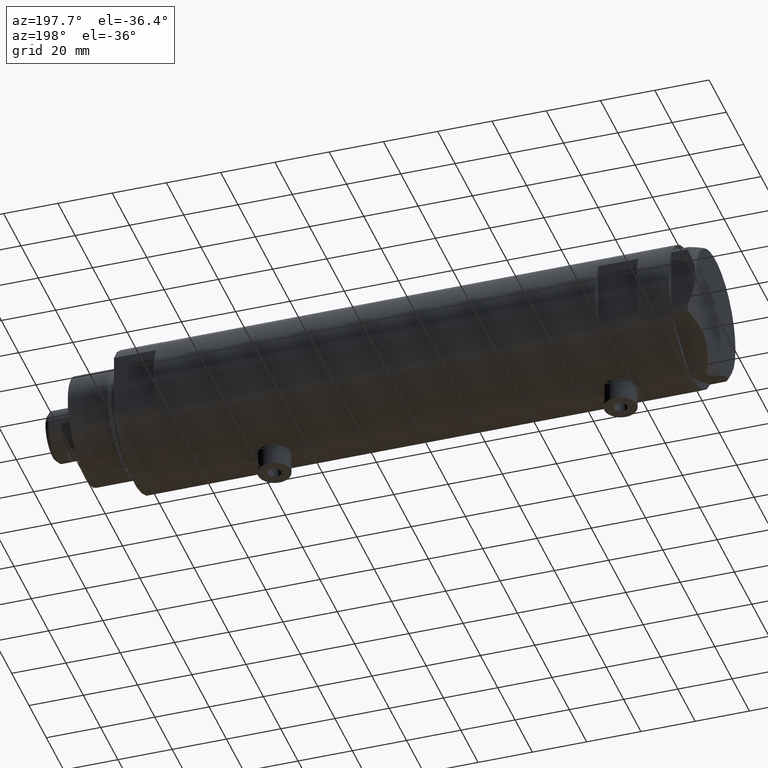
[diagram: clean part render]
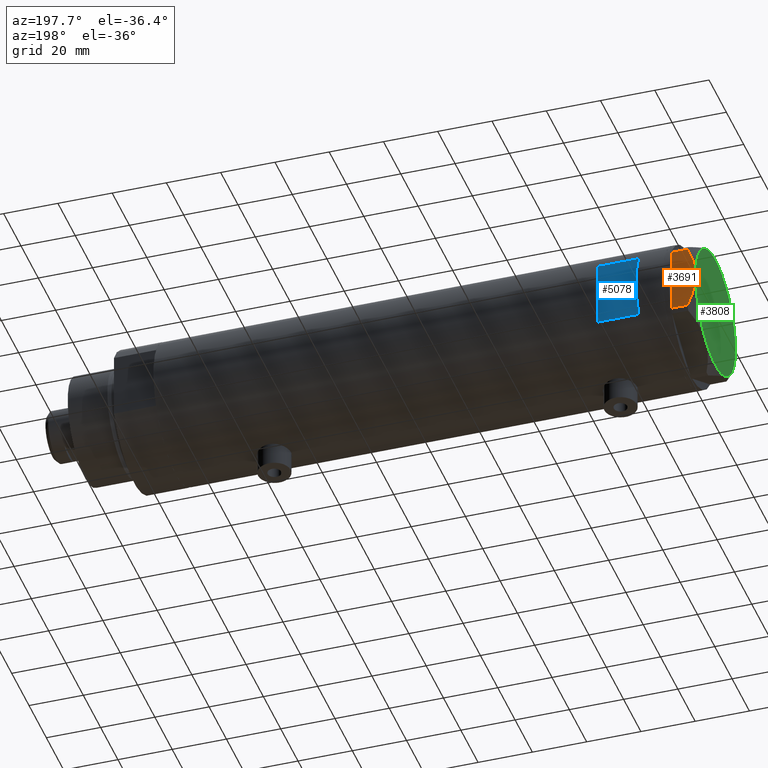
[diagram: same view with three faces highlighted in distinct colors, each labeled with its STEP entity id]
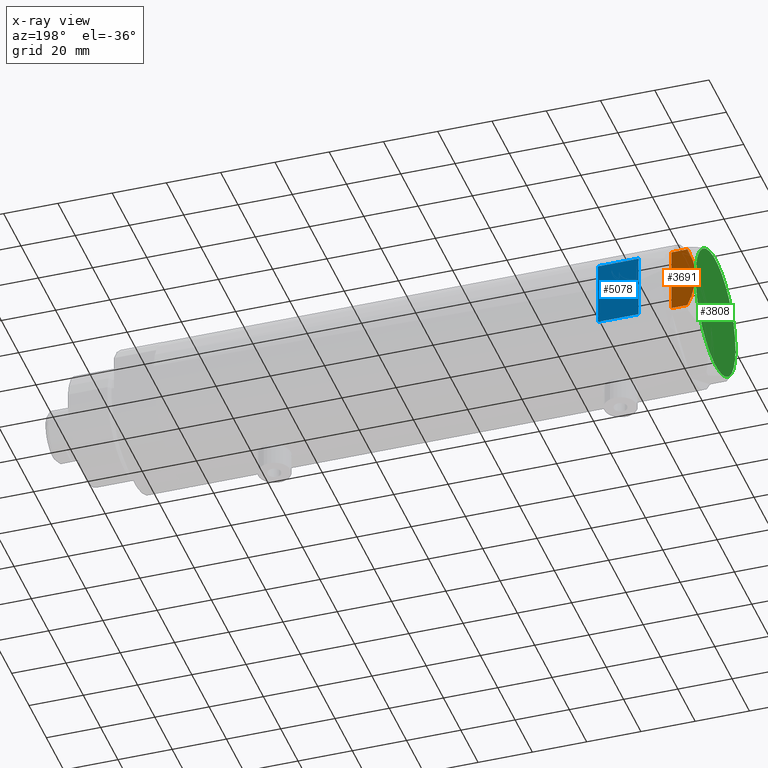
[diagram: x-ray of the same camera — body ghosted, the three highlighted faces saturated]
A machine part, auxiliary view with three faces highlighted in distinct colors.
The next image is the same camera in x-ray (body ghosted, the three faces saturated) — at least one of them is partly hidden behind the body in this view.
Their STEP definitions:

[orange] entity #3691 — the highlighted planar face has unit normal (0, -1, 0).
#37 = CARTESIAN_POINT ( 'NONE',  ( 23.00000000000002132, -6.734330413511252722, 8.039389741252669808 ) ) ;
#144 = CARTESIAN_POINT ( 'NONE',  ( 23.00000000000008527, -13.27905619136115867, 0.000000000000000000 ) ) ;
#207 = DIRECTION ( 'NONE',  ( -1.000000000000000000, -1.032024811306395780E-14, 0.000000000000000000 ) ) ;
#222 = DIRECTION ( 'NONE',  ( -1.032024811306395780E-14, 1.000000000000000000, 0.000000000000000000 ) ) ;
#274 = VERTEX_POINT ( 'NONE', #692 ) ;
#309 = ORIENTED_EDGE ( 'NONE', *, *, #4830, .T. ) ;
#370 = CARTESIAN_POINT ( 'NONE',  ( 23.00000000000004263, -8.748091966971204059, 7.396818978284578350 ) ) ;
#380 = EDGE_CURVE ( 'NONE', #3529, #1786, #3949, .T. ) ;
#481 = CARTESIAN_POINT ( 'NONE',  ( 23.00000000000008527, -13.27905619136115867, 0.000000000000000000 ) ) ;
#493 = LINE ( 'NONE', #831, #4534 ) ;
#509 = DIRECTION ( 'NONE',  ( -1.032024811306395780E-14, 1.000000000000000000, 0.000000000000000000 ) ) ;
#525 = CARTESIAN_POINT ( 'NONE',  ( 22.99999999999982236, 12.15905619136164262, 5.983800287807618190 ) ) ;
#602 = CARTESIAN_POINT ( 'NONE',  ( 22.99999999999994671, 0.5295934231899334099, 9.000000000000095923 ) ) ;
#609 = CARTESIAN_POINT ( 'NONE',  ( 22.99999999999982236, 12.15905619136163729, 9.000000000000000000 ) ) ;
#692 = CARTESIAN_POINT ( 'NONE',  ( 22.99999999999982236, 12.15905619136164262, 5.983800287807618190 ) ) ;
#762 = CARTESIAN_POINT ( 'NONE',  ( 23.00000000000003197, -8.246028007352183664, 7.571131808646910599 ) ) ;
#772 = VERTEX_POINT ( 'NONE', #3301 ) ;
#831 = CARTESIAN_POINT ( 'NONE',  ( 23.00000000000008527, -13.27905619136115867, 0.000000000000000000 ) ) ;
#875 = CARTESIAN_POINT ( 'NONE',  ( 23.00000000000008527, -13.27905619136115867, 9.000000000000000000 ) ) ;
#903 = DIRECTION ( 'NONE',  ( 1.032024811306395780E-14, -1.000000000000000000, 0.000000000000000000 ) ) ;
#970 = DIRECTION ( 'NONE',  ( 0.000000000000000000, 0.000000000000000000, 1.000000000000000000 ) ) ;
#1153 = ORIENTED_EDGE ( 'NONE', *, *, #1430, .F. ) ;
#1182 = CARTESIAN_POINT ( 'NONE',  ( 23.00000000000002842, -7.239756182922028493, 7.892186063422852449 ) ) ;
#1226 = CARTESIAN_POINT ( 'NONE',  ( 22.99999999999995026, 2.373657066004705010E-13, 9.000000000000000000 ) ) ;
#1338 = VECTOR ( 'NONE', #509, 1000.000000000000000 ) ;
#1362 = CARTESIAN_POINT ( 'NONE',  ( 22.99999999999984368, 11.20155944044832630, 6.421102682632754188 ) ) ;
#1386 = CARTESIAN_POINT ( 'NONE',  ( 22.99999999999990763, 4.203926054642127319, 8.641681223122510858 ) ) ;
#1430 = EDGE_CURVE ( 'NONE', #1629, #274, #4150, .T. ) ;
#1533 = EDGE_CURVE ( 'NONE', #1786, #3810, #493, .T. ) ;
#1629 = VERTEX_POINT ( 'NONE', #4857 ) ;
#1777 = ORIENTED_EDGE ( 'NONE', *, *, #1533, .T. ) ;
#1786 = VERTEX_POINT ( 'NONE', #4098 ) ;
#1802 = EDGE_CURVE ( 'NONE', #3810, #4923, #4069, .T. ) ;
#1821 = EDGE_LOOP ( 'NONE', ( #2433, #4889, #1777, #2559, #309, #4011, #1153 ) ) ;
#1841 = LINE ( 'NONE', #144, #3397 ) ;
#1892 = CARTESIAN_POINT ( 'NONE',  ( 23.00000000000006395, -11.20825071633898240, 6.428173306378455187 ) ) ;
#1972 = VECTOR ( 'NONE', #970, 1000.000000000000000 ) ;
#2200 = CARTESIAN_POINT ( 'NONE',  ( 22.99999999999992539, 2.119709279062085727, 8.908535212173203988 ) ) ;
#2214 = CARTESIAN_POINT ( 'NONE',  ( 23.00000000000007461, -12.12435565298200224, 0.000000000000000000 ) ) ;
#2224 = CARTESIAN_POINT ( 'NONE',  ( 22.99999999999993960, 1.063773509315896648, 8.981438083606837708 ) ) ;
#2358 = CARTESIAN_POINT ( 'NONE',  ( 22.99999999999997513, -2.122900714017905699, 9.000000000000095923 ) ) ;
#2433 = ORIENTED_EDGE ( 'NONE', *, *, #3993, .F. ) ;
#2559 = ORIENTED_EDGE ( 'NONE', *, *, #1802, .T. ) ;
#2581 = FACE_OUTER_BOUND ( 'NONE', #1821, .T. ) ;
#2593 = CARTESIAN_POINT ( 'NONE',  ( 22.99999999999995026, 2.373657066004705010E-13, 9.000000000000000000 ) ) ;
#2659 = AXIS2_PLACEMENT_3D ( 'NONE', #875, #207, #903 ) ;
#2678 = CARTESIAN_POINT ( 'NONE',  ( 23.00000000000007461, -12.15905619136115412, 5.983800287807623519 ) ) ;
#2749 = CARTESIAN_POINT ( 'NONE',  ( 23.00000000000007461, -12.15905619136115412, 5.983800287807623519 ) ) ;
#3042 = CARTESIAN_POINT ( 'NONE',  ( 22.99999999999987921, 7.253003311474552461, 7.903276810347635184 ) ) ;
#3052 = DIRECTION ( 'NONE',  ( 0.000000000000000000, 0.000000000000000000, -1.000000000000000000 ) ) ;
#3131 = CARTESIAN_POINT ( 'NONE',  ( 23.00000000000007461, -12.15905619136115590, 9.000000000000000000 ) ) ;
#3194 = DIRECTION ( 'NONE',  ( -1.032024811306395780E-14, 1.000000000000000000, 0.000000000000000000 ) ) ;
#3291 = PLANE ( 'NONE',  #2659 ) ;
#3301 = CARTESIAN_POINT ( 'NONE',  ( 22.99999999999982236, 12.15905619136163729, 0.000000000000000000 ) ) ;
#3397 = VECTOR ( 'NONE', #222, 1000.000000000000000 ) ;
#3406 = CARTESIAN_POINT ( 'NONE',  ( 22.99999999999986500, 8.252113629125430450, 7.581642062680224115 ) ) ;
#3491 = CARTESIAN_POINT ( 'NONE',  ( 23.00000000000005684, -10.23890159976104641, 6.840812428290920622 ) ) ;
#3529 = VERTEX_POINT ( 'NONE', #2749 ) ;
#3691 = ADVANCED_FACE ( 'NONE', ( #2581 ), #3291, .F. ) ;
#3748 = CARTESIAN_POINT ( 'NONE',  ( 22.99999999999983658, 10.22738952213810926, 6.832470313674774864 ) ) ;
#3799 = CARTESIAN_POINT ( 'NONE',  ( 22.99999999999990052, 5.228918809624284236, 8.433337033849852560 ) ) ;
#3810 = VERTEX_POINT ( 'NONE', #2214 ) ;
#3949 = LINE ( 'NONE', #3131, #4006 ) ;
#3977 = B_SPLINE_CURVE_WITH_KNOTS ( 'NONE', 3,
 ( #2678, #1892, #3491, #370, #762, #1182, #37, #4832, #2358, #1226 ),
 .UNSPECIFIED., .F., .F.,
 ( 4, 2, 2, 2, 4 ),
 ( 0.03516523594057417712, 0.03831677594541235687, 0.03989254594783144675, 0.04146831595025053663, 0.04777139595992689614 ),
 .UNSPECIFIED. ) ;
#3993 = EDGE_CURVE ( 'NONE', #3529, #1629, #3977, .T. ) ;
#4006 = VECTOR ( 'NONE', #3052, 1000.000000000000000 ) ;
#4011 = ORIENTED_EDGE ( 'NONE', *, *, #4775, .T. ) ;
#4069 = LINE ( 'NONE', #481, #1338 ) ;
#4098 = CARTESIAN_POINT ( 'NONE',  ( 23.00000000000007461, -12.15905619136115590, 0.000000000000000000 ) ) ;
#4147 = CARTESIAN_POINT ( 'NONE',  ( 22.99999999999982592, 12.12435565298247653, 0.000000000000000000 ) ) ;
#4150 = B_SPLINE_CURVE_WITH_KNOTS ( 'NONE', 3,
 ( #2593, #602, #2224, #2200, #4968, #1386, #3799, #3042, #3406, #4549, #3748, #1362, #4651, #525 ),
 .UNSPECIFIED., .F., .F.,
 ( 4, 2, 2, 2, 2, 2, 4 ),
 ( 0.04777139595992689614, 0.04934380568070229067, 0.05091621540147768521, 0.05406103484302848122, 0.05720585428457927030, 0.05877826400535466483, 0.06035067372613005937 ),
 .UNSPECIFIED. ) ;
#4534 = VECTOR ( 'NONE', #3194, 1000.000000000000000 ) ;
#4549 = CARTESIAN_POINT ( 'NONE',  ( 22.99999999999985079, 9.734726261263462632, 7.028924700095659617 ) ) ;
#4651 = CARTESIAN_POINT ( 'NONE',  ( 22.99999999999982947, 11.68282849742352525, 6.206372352695418648 ) ) ;
#4775 = EDGE_CURVE ( 'NONE', #772, #274, #4951, .T. ) ;
#4830 = EDGE_CURVE ( 'NONE', #4923, #772, #1841, .T. ) ;
#4832 = CARTESIAN_POINT ( 'NONE',  ( 22.99999999999999289, -4.194757081058811288, 8.703000351525204792 ) ) ;
#4857 = CARTESIAN_POINT ( 'NONE',  ( 22.99999999999995026, 2.373657066004705010E-13, 9.000000000000000000 ) ) ;
#4889 = ORIENTED_EDGE ( 'NONE', *, *, #380, .T. ) ;
#4923 = VERTEX_POINT ( 'NONE', #4147 ) ;
#4951 = LINE ( 'NONE', #609, #1972 ) ;
#4968 = CARTESIAN_POINT ( 'NONE',  ( 22.99999999999992184, 2.643615312305318099, 8.854304560636265364 ) ) ;

[blue] entity #5078 — the highlighted planar face has unit normal (0, -1, -0).
#55 = LINE ( 'NONE', #1615, #2421 ) ;
#228 = AXIS2_PLACEMENT_3D ( 'NONE', #4334, #4255, #2649 ) ;
#249 = CARTESIAN_POINT ( 'NONE',  ( -26.00000000000000355, 23.00000000000000355, 68.95000000000000284 ) ) ;
#324 = PLANE ( 'NONE',  #228 ) ;
#490 = CARTESIAN_POINT ( 'NONE',  ( -12.12435565298214080, 23.00000000000000355, 83.95000000000000284 ) ) ;
#639 = VECTOR ( 'NONE', #2309, 1000.000000000000000 ) ;
#688 = LINE ( 'NONE', #1186, #2384 ) ;
#833 = ORIENTED_EDGE ( 'NONE', *, *, #1114, .T. ) ;
#1114 = EDGE_CURVE ( 'NONE', #3563, #1670, #4339, .T. ) ;
#1186 = CARTESIAN_POINT ( 'NONE',  ( -12.12435565298214080, 23.00000000000000355, -93.95000000000000284 ) ) ;
#1615 = CARTESIAN_POINT ( 'NONE',  ( 12.12435565298214080, 23.00000000000000355, -93.95000000000000284 ) ) ;
#1670 = VERTEX_POINT ( 'NONE', #3613 ) ;
#1672 = EDGE_CURVE ( 'NONE', #1670, #2962, #55, .T. ) ;
#2309 = DIRECTION ( 'NONE',  ( 1.000000000000000000, -0.000000000000000000, -0.000000000000000000 ) ) ;
#2332 = FACE_OUTER_BOUND ( 'NONE', #2633, .T. ) ;
#2362 = CARTESIAN_POINT ( 'NONE',  ( -26.00000000000000355, 23.00000000000000355, 83.95000000000000284 ) ) ;
#2384 = VECTOR ( 'NONE', #5088, 1000.000000000000000 ) ;
#2421 = VECTOR ( 'NONE', #2477, 1000.000000000000000 ) ;
#2477 = DIRECTION ( 'NONE',  ( -0.000000000000000000, -0.000000000000000000, -1.000000000000000000 ) ) ;
#2633 = EDGE_LOOP ( 'NONE', ( #3800, #3633, #3418, #833 ) ) ;
#2649 = DIRECTION ( 'NONE',  ( 0.000000000000000000, 0.000000000000000000, -1.000000000000000000 ) ) ;
#2962 = VERTEX_POINT ( 'NONE', #3072 ) ;
#3008 = VECTOR ( 'NONE', #4740, 1000.000000000000000 ) ;
#3072 = CARTESIAN_POINT ( 'NONE',  ( 12.12435565298213724, 23.00000000000000355, 68.95000000000000284 ) ) ;
#3418 = ORIENTED_EDGE ( 'NONE', *, *, #4165, .T. ) ;
#3563 = VERTEX_POINT ( 'NONE', #490 ) ;
#3613 = CARTESIAN_POINT ( 'NONE',  ( 12.12435565298214080, 23.00000000000000355, 83.95000000000000284 ) ) ;
#3633 = ORIENTED_EDGE ( 'NONE', *, *, #5047, .F. ) ;
#3800 = ORIENTED_EDGE ( 'NONE', *, *, #1672, .T. ) ;
#4165 = EDGE_CURVE ( 'NONE', #4281, #3563, #688, .T. ) ;
#4255 = DIRECTION ( 'NONE',  ( 0.000000000000000000, -1.000000000000000000, -0.000000000000000000 ) ) ;
#4281 = VERTEX_POINT ( 'NONE', #4387 ) ;
#4311 = LINE ( 'NONE', #249, #639 ) ;
#4334 = CARTESIAN_POINT ( 'NONE',  ( -26.00000000000000355, 23.00000000000000355, 83.95000000000000284 ) ) ;
#4339 = LINE ( 'NONE', #2362, #3008 ) ;
#4387 = CARTESIAN_POINT ( 'NONE',  ( -12.12435565298214080, 23.00000000000000355, 68.95000000000000284 ) ) ;
#4740 = DIRECTION ( 'NONE',  ( 1.000000000000000000, -0.000000000000000000, -0.000000000000000000 ) ) ;
#5047 = EDGE_CURVE ( 'NONE', #4281, #2962, #4311, .T. ) ;
#5078 = ADVANCED_FACE ( 'NONE', ( #2332 ), #324, .F. ) ;
#5088 = DIRECTION ( 'NONE',  ( 0.000000000000000000, 0.000000000000000000, 1.000000000000000000 ) ) ;

[green] entity #3808 — the highlighted planar face has unit normal (-1, -0, 0).
#11 = AXIS2_PLACEMENT_3D ( 'NONE', #2458, #3298, #1333 ) ;
#175 = ORIENTED_EDGE ( 'NONE', *, *, #1882, .T. ) ;
#269 = DIRECTION ( 'NONE',  ( 1.000000000000000000, 0.000000000000000000, 0.000000000000000000 ) ) ;
#271 = DIRECTION ( 'NONE',  ( 0.000000000000000000, 0.000000000000000000, 1.000000000000000000 ) ) ;
#497 = VERTEX_POINT ( 'NONE', #1448 ) ;
#696 = FACE_OUTER_BOUND ( 'NONE', #2213, .T. ) ;
#722 = DIRECTION ( 'NONE',  ( 1.000000000000000000, 0.000000000000000000, -0.000000000000000000 ) ) ;
#730 = DIRECTION ( 'NONE',  ( 0.000000000000000000, 0.000000000000000000, 1.000000000000000000 ) ) ;
#960 = DIRECTION ( 'NONE',  ( 1.000000000000000000, 0.000000000000000000, 0.000000000000000000 ) ) ;
#1024 = CARTESIAN_POINT ( 'NONE',  ( 11.49999999999990408, 19.91858428704219364, 9.000000000000000000 ) ) ;
#1178 = CIRCLE ( 'NONE', #1931, 23.00000000000004619 ) ;
#1333 = DIRECTION ( 'NONE',  ( 1.000000000000000000, 0.000000000000000000, 0.000000000000000000 ) ) ;
#1372 = ORIENTED_EDGE ( 'NONE', *, *, #4610, .T. ) ;
#1400 = ORIENTED_EDGE ( 'NONE', *, *, #2037, .T. ) ;
#1448 = CARTESIAN_POINT ( 'NONE',  ( 11.50000000000018296, -19.91858428704203732, 9.000000000000000000 ) ) ;
#1461 = DIRECTION ( 'NONE',  ( 0.000000000000000000, 0.000000000000000000, 1.000000000000000000 ) ) ;
#1467 = EDGE_CURVE ( 'NONE', #3393, #1792, #5131, .T. ) ;
#1577 = ORIENTED_EDGE ( 'NONE', *, *, #3288, .T. ) ;
#1629 = VERTEX_POINT ( 'NONE', #4857 ) ;
#1792 = VERTEX_POINT ( 'NONE', #2464 ) ;
#1796 = VERTEX_POINT ( 'NONE', #2918 ) ;
#1800 = CIRCLE ( 'NONE', #5006, 23.00000000000004619 ) ;
#1804 = DIRECTION ( 'NONE',  ( 1.000000000000000000, 0.000000000000000000, 0.000000000000000000 ) ) ;
#1882 = EDGE_CURVE ( 'NONE', #1792, #497, #4790, .T. ) ;
#1931 = AXIS2_PLACEMENT_3D ( 'NONE', #4218, #271, #1804 ) ;
#2037 = EDGE_CURVE ( 'NONE', #4987, #1796, #1178, .T. ) ;
#2071 = EDGE_CURVE ( 'NONE', #1629, #4987, #4368, .T. ) ;
#2145 = DIRECTION ( 'NONE',  ( 0.000000000000000000, 0.000000000000000000, 1.000000000000000000 ) ) ;
#2213 = EDGE_LOOP ( 'NONE', ( #1372, #4202, #1400, #1577, #2414, #175 ) ) ;
#2353 = AXIS2_PLACEMENT_3D ( 'NONE', #2642, #730, #269 ) ;
#2414 = ORIENTED_EDGE ( 'NONE', *, *, #1467, .T. ) ;
#2458 = CARTESIAN_POINT ( 'NONE',  ( 0.000000000000000000, 0.000000000000000000, 9.000000000000000000 ) ) ;
#2464 = CARTESIAN_POINT ( 'NONE',  ( -11.49999999999990585, -19.91858428704219364, 9.000000000000000000 ) ) ;
#2539 = CARTESIAN_POINT ( 'NONE',  ( 0.000000000000000000, 0.000000000000000000, 9.000000000000000000 ) ) ;
#2642 = CARTESIAN_POINT ( 'NONE',  ( 0.000000000000000000, 0.000000000000000000, 9.000000000000000000 ) ) ;
#2716 = CARTESIAN_POINT ( 'NONE',  ( 0.000000000000000000, 0.000000000000000000, 9.000000000000000000 ) ) ;
#2918 = CARTESIAN_POINT ( 'NONE',  ( -11.50000000000004441, 19.91858428704211548, 9.000000000000000000 ) ) ;
#2959 = CARTESIAN_POINT ( 'NONE',  ( 0.000000000000000000, 0.000000000000000000, 9.000000000000000000 ) ) ;
#3092 = CARTESIAN_POINT ( 'NONE',  ( 0.000000000000000000, 0.000000000000000000, 9.000000000000000000 ) ) ;
#3141 = DIRECTION ( 'NONE',  ( 1.000000000000000000, 0.000000000000000000, 0.000000000000000000 ) ) ;
#3261 = AXIS2_PLACEMENT_3D ( 'NONE', #2539, #2145, #3774 ) ;
#3288 = EDGE_CURVE ( 'NONE', #1796, #3393, #4451, .T. ) ;
#3298 = DIRECTION ( 'NONE',  ( 0.000000000000000000, 0.000000000000000000, 1.000000000000000000 ) ) ;
#3393 = VERTEX_POINT ( 'NONE', #3456 ) ;
#3456 = CARTESIAN_POINT ( 'NONE',  ( -23.00000000000004619, -8.112498833180673323E-14, 9.000000000000000000 ) ) ;
#3503 = PLANE ( 'NONE',  #5019 ) ;
#3774 = DIRECTION ( 'NONE',  ( 1.000000000000000000, 0.000000000000000000, 0.000000000000000000 ) ) ;
#3808 = ADVANCED_FACE ( 'NONE', ( #696 ), #3503, .T. ) ;
#3946 = AXIS2_PLACEMENT_3D ( 'NONE', #2959, #4169, #960 ) ;
#4169 = DIRECTION ( 'NONE',  ( 0.000000000000000000, 0.000000000000000000, 1.000000000000000000 ) ) ;
#4202 = ORIENTED_EDGE ( 'NONE', *, *, #2071, .T. ) ;
#4218 = CARTESIAN_POINT ( 'NONE',  ( 0.000000000000000000, 0.000000000000000000, 9.000000000000000000 ) ) ;
#4322 = DIRECTION ( 'NONE',  ( 0.000000000000000000, 0.000000000000000000, 1.000000000000000000 ) ) ;
#4368 = CIRCLE ( 'NONE', #3946, 23.00000000000004619 ) ;
#4451 = CIRCLE ( 'NONE', #2353, 23.00000000000004619 ) ;
#4610 = EDGE_CURVE ( 'NONE', #497, #1629, #1800, .T. ) ;
#4790 = CIRCLE ( 'NONE', #11, 23.00000000000004619 ) ;
#4857 = CARTESIAN_POINT ( 'NONE',  ( 22.99999999999995026, 2.373657066004705010E-13, 9.000000000000000000 ) ) ;
#4987 = VERTEX_POINT ( 'NONE', #1024 ) ;
#5006 = AXIS2_PLACEMENT_3D ( 'NONE', #3092, #1461, #3141 ) ;
#5019 = AXIS2_PLACEMENT_3D ( 'NONE', #2716, #4322, #722 ) ;
#5131 = CIRCLE ( 'NONE', #3261, 23.00000000000004619 ) ;